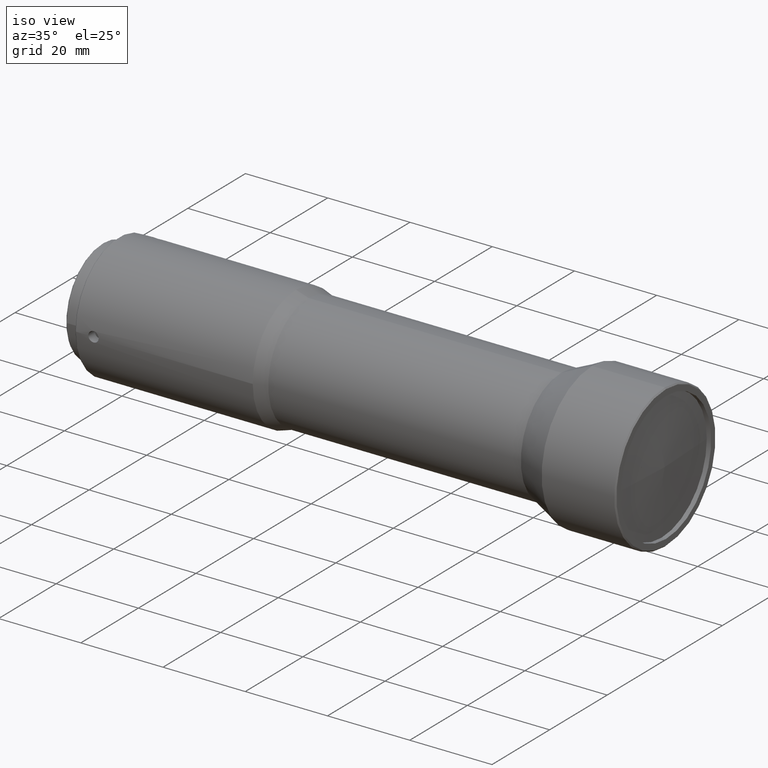
[diagram: clean part render]
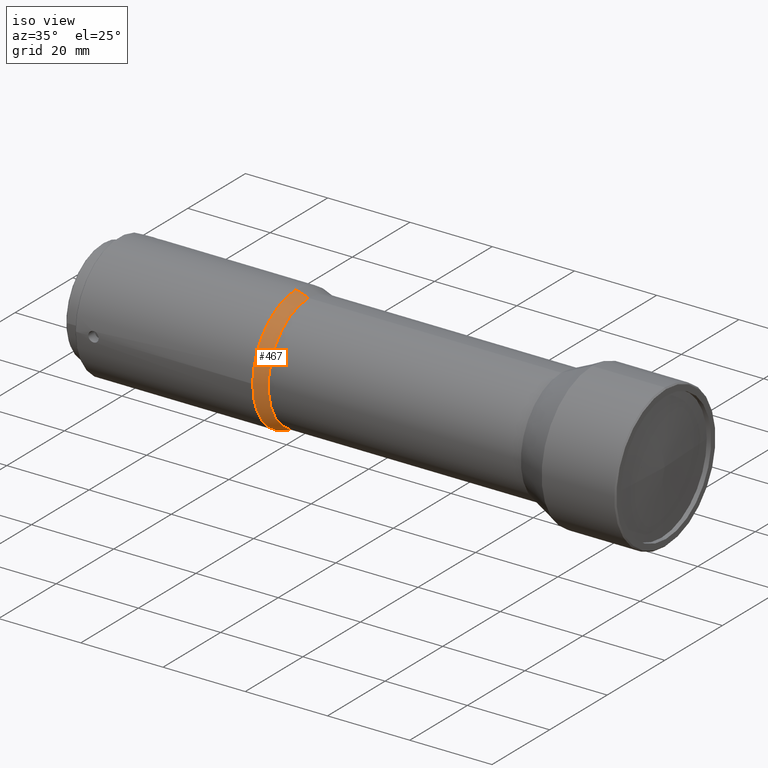
[diagram: same view with one face highlighted and labeled with its STEP entity id]
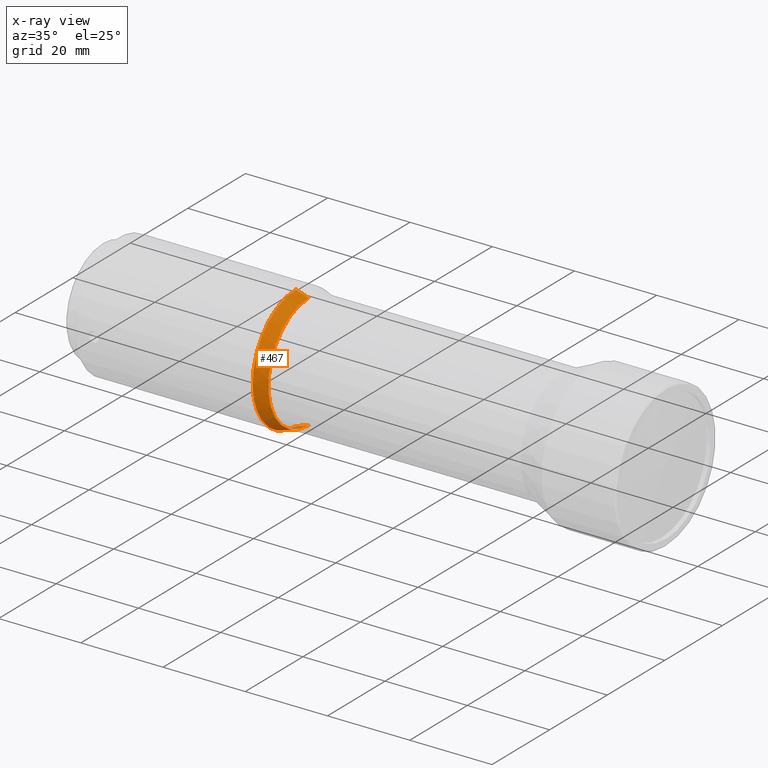
[diagram: x-ray of the same camera — body ghosted, the highlighted face saturated]
A machine part, iso view. The second image highlights one B-rep face of the part: STEP entity #467.
The next image is the same camera in x-ray: the body ghosted, the highlighted face saturated — about 0% of this face is hidden behind the body in this view.
In plain terms, the highlighted conical surface has half-angle 18 deg.
Its self-contained STEP definition (entity closure, byte-faithful):
#10 = EDGE_CURVE ( 'NONE', #1199, #1228, #1220, .T. ) ;
#50 = EDGE_CURVE ( 'NONE', #1228, #1272, #260, .T. ) ;
#51 = EDGE_CURVE ( 'NONE', #1199, #1182, #259, .T. ) ;
#165 = CONICAL_SURFACE ( 'NONE', #373, 14.00000000000000000, 0.3141592653757144800 ) ;
#173 = FACE_OUTER_BOUND ( 'NONE', #1321, .T. ) ;
#198 = CIRCLE ( 'NONE', #357, 15.00000000000000000 ) ;
#241 = VECTOR ( 'NONE', #781, 1000.000000000000000 ) ;
#242 = LINE ( 'NONE', #780, #241 ) ;
#259 = CIRCLE ( 'NONE', #348, 14.00000000000000000 ) ;
#260 = CIRCLE ( 'NONE', #367, 15.00000000000000000 ) ;
#319 = EDGE_CURVE ( 'NONE', #1182, #1209, #242, .T. ) ;
#348 = AXIS2_PLACEMENT_3D ( 'NONE', #545, #806, #547 ) ;
#357 = AXIS2_PLACEMENT_3D ( 'NONE', #1075, #1027, #1081 ) ;
#367 = AXIS2_PLACEMENT_3D ( 'NONE', #527, #534, #535 ) ;
#373 = AXIS2_PLACEMENT_3D ( 'NONE', #849, #825, #827 ) ;
#442 = EDGE_CURVE ( 'NONE', #1272, #1209, #198, .T. ) ;
#467 = ADVANCED_FACE ( 'NONE', ( #173 ), #165, .T. ) ;
#527 = CARTESIAN_POINT ( 'NONE',  ( -57.70000000000008800, 0.0000000000000000000, 0.0000000000000000000 ) ) ;
#534 = DIRECTION ( 'NONE',  ( -1.000000000000000000, 0.0000000000000000000, 0.0000000000000000000 ) ) ;
#535 = DIRECTION ( 'NONE',  ( 5.551115123125782700E-015, -1.000000000000000000, 0.0000000000000000000 ) ) ;
#545 = CARTESIAN_POINT ( 'NONE',  ( -54.62231646300000400, 0.0000000000000000000, 0.0000000000000000000 ) ) ;
#547 = DIRECTION ( 'NONE',  ( 0.0000000000000000000, -1.000000000000000000, 0.0000000000000000000 ) ) ;
#680 = CARTESIAN_POINT ( 'NONE',  ( -57.70000000000000300, -15.00000000000000000, 0.0000000000000000000 ) ) ;
#703 = CARTESIAN_POINT ( 'NONE',  ( -57.70000000000008800, 1.836970198721033100E-015, -15.00000000000002700 ) ) ;
#712 = CARTESIAN_POINT ( 'NONE',  ( -57.70000000000008800, 0.0000000000000000000, 15.00000000000002700 ) ) ;
#721 = CARTESIAN_POINT ( 'NONE',  ( -54.62231646300000400, 1.775737858763662000E-015, -14.00000000000000000 ) ) ;
#738 = CARTESIAN_POINT ( 'NONE',  ( -54.62231646300000400, 0.0000000000000000000, 14.00000000000000000 ) ) ;
#780 = CARTESIAN_POINT ( 'NONE',  ( -54.62231646300000400, 0.0000000000000000000, 14.00000000000000000 ) ) ;
#781 = DIRECTION ( 'NONE',  ( -0.9510565162899821100, 0.0000000000000000000, 0.3090169943908635000 ) ) ;
#806 = DIRECTION ( 'NONE',  ( -1.000000000000000000, 0.0000000000000000000, 0.0000000000000000000 ) ) ;
#825 = DIRECTION ( 'NONE',  ( -1.000000000000000000, 0.0000000000000000000, 0.0000000000000000000 ) ) ;
#827 = DIRECTION ( 'NONE',  ( 0.0000000000000000000, 0.0000000000000000000, 1.000000000000000000 ) ) ;
#849 = CARTESIAN_POINT ( 'NONE',  ( -54.62231646300000400, 0.0000000000000000000, 0.0000000000000000000 ) ) ;
#887 = CARTESIAN_POINT ( 'NONE',  ( -54.62231646300000400, 1.714505518806294600E-015, -14.00000000000000000 ) ) ;
#894 = DIRECTION ( 'NONE',  ( -0.9510565162899821100, 3.784366730629065800E-017, -0.3090169943908635000 ) ) ;
#1027 = DIRECTION ( 'NONE',  ( -1.000000000000000000, 0.0000000000000000000, 0.0000000000000000000 ) ) ;
#1075 = CARTESIAN_POINT ( 'NONE',  ( -57.70000000000008800, 0.0000000000000000000, 0.0000000000000000000 ) ) ;
#1081 = DIRECTION ( 'NONE',  ( 5.551115123125782700E-015, -1.000000000000000000, 0.0000000000000000000 ) ) ;
#1182 = VERTEX_POINT ( 'NONE', #738 ) ;
#1185 = VECTOR ( 'NONE', #894, 1000.000000000000000 ) ;
#1199 = VERTEX_POINT ( 'NONE', #721 ) ;
#1209 = VERTEX_POINT ( 'NONE', #712 ) ;
#1220 = LINE ( 'NONE', #887, #1185 ) ;
#1228 = VERTEX_POINT ( 'NONE', #703 ) ;
#1266 = ORIENTED_EDGE ( 'NONE', *, *, #442, .F. ) ;
#1270 = ORIENTED_EDGE ( 'NONE', *, *, #50, .F. ) ;
#1272 = VERTEX_POINT ( 'NONE', #680 ) ;
#1276 = ORIENTED_EDGE ( 'NONE', *, *, #51, .T. ) ;
#1321 = EDGE_LOOP ( 'NONE', ( #1443, #1276, #1486, #1266, #1270 ) ) ;
#1443 = ORIENTED_EDGE ( 'NONE', *, *, #10, .F. ) ;
#1486 = ORIENTED_EDGE ( 'NONE', *, *, #319, .T. ) ;